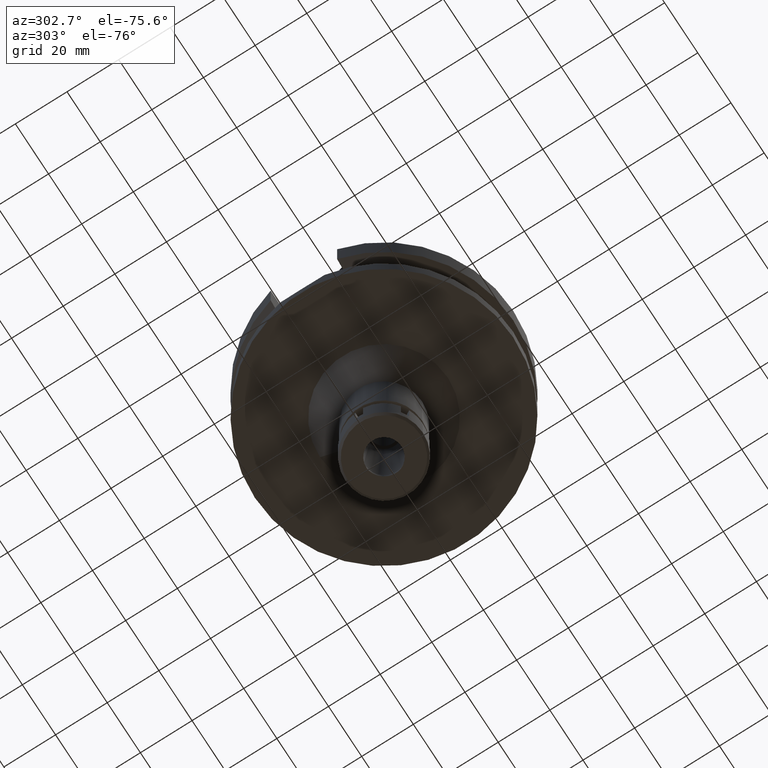
[diagram: clean part render]
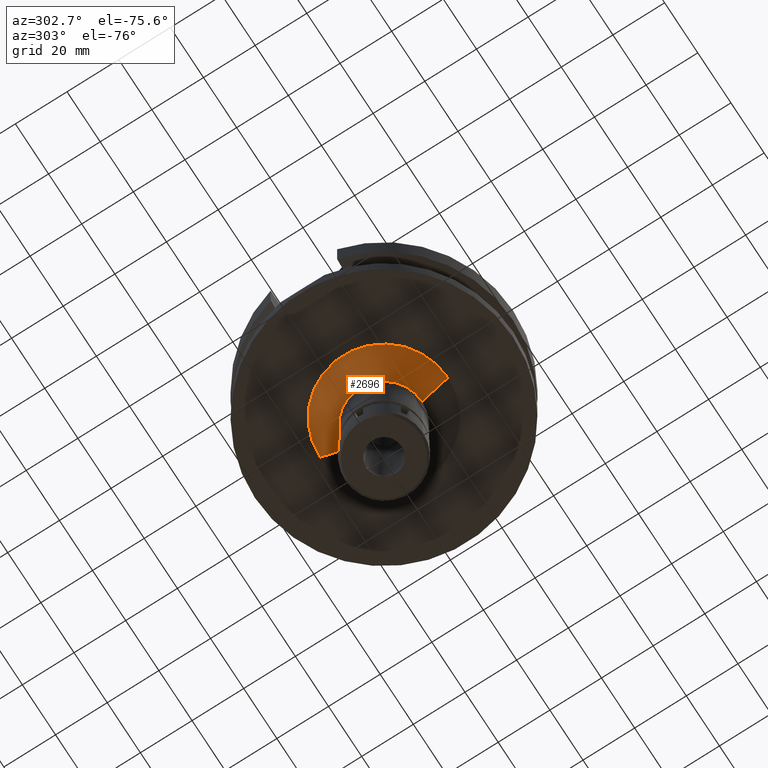
[diagram: same view with one face highlighted and labeled with its STEP entity id]
A machine part, auxiliary view. The second image highlights one B-rep face of the part: STEP entity #2696.
In plain terms, the highlighted conical surface has half-angle 45 deg.
Its self-contained STEP definition (entity closure, byte-faithful):
#161 = DIRECTION ( 'NONE',  ( 0.0000000000000000000, 0.0000000000000000000, -1.000000000000000000 ) ) ;
#195 = ORIENTED_EDGE ( 'NONE', *, *, #1630, .F. ) ;
#227 = EDGE_CURVE ( 'NONE', #1597, #2501, #1205, .T. ) ;
#403 = AXIS2_PLACEMENT_3D ( 'NONE', #1789, #910, #3152 ) ;
#438 = CARTESIAN_POINT ( 'NONE',  ( 0.0000000000000000000, 0.0000000000000000000, -38.00000000000000000 ) ) ;
#568 = AXIS2_PLACEMENT_3D ( 'NONE', #438, #161, #2421 ) ;
#629 = CIRCLE ( 'NONE', #568, 24.75000000000000000 ) ;
#697 = VERTEX_POINT ( 'NONE', #1315 ) ;
#801 = AXIS2_PLACEMENT_3D ( 'NONE', #1781, #2375, #953 ) ;
#836 = EDGE_CURVE ( 'NONE', #697, #2514, #887, .T. ) ;
#851 = ORIENTED_EDGE ( 'NONE', *, *, #3183, .T. ) ;
#887 = LINE ( 'NONE', #2008, #1262 ) ;
#910 = DIRECTION ( 'NONE',  ( 0.0000000000000000000, 0.0000000000000000000, 1.000000000000000000 ) ) ;
#953 = DIRECTION ( 'NONE',  ( 0.0000000000000000000, -1.000000000000000000, 0.0000000000000000000 ) ) ;
#1205 = LINE ( 'NONE', #1734, #3510 ) ;
#1262 = VECTOR ( 'NONE', #1725, 1000.000000000000114 ) ;
#1315 = CARTESIAN_POINT ( 'NONE',  ( 0.0000000000000000000, 24.75000000000000000, -38.00000000000000000 ) ) ;
#1597 = VERTEX_POINT ( 'NONE', #2040 ) ;
#1630 = EDGE_CURVE ( 'NONE', #2501, #2514, #3420, .T. ) ;
#1725 = DIRECTION ( 'NONE',  ( 0.0000000000000000000, -0.7071067811865474617, -0.7071067811865474617 ) ) ;
#1734 = CARTESIAN_POINT ( 'NONE',  ( 0.0000000000000000000, -24.75000000000000000, -38.00000000000000000 ) ) ;
#1781 = CARTESIAN_POINT ( 'NONE',  ( 0.0000000000000000000, 0.0000000000000000000, -48.00000000000000000 ) ) ;
#1789 = CARTESIAN_POINT ( 'NONE',  ( 0.0000000000000000000, 0.0000000000000000000, -43.00000000000000000 ) ) ;
#1943 = ORIENTED_EDGE ( 'NONE', *, *, #836, .T. ) ;
#2008 = CARTESIAN_POINT ( 'NONE',  ( 0.0000000000000000000, 24.75000000000000000, -38.00000000000000000 ) ) ;
#2040 = CARTESIAN_POINT ( 'NONE',  ( 0.0000000000000000000, -24.75000000000000000, -38.00000000000000000 ) ) ;
#2346 = CONICAL_SURFACE ( 'NONE', #403, 19.75000000000000000, 0.7853981633972997312 ) ;
#2364 = ORIENTED_EDGE ( 'NONE', *, *, #227, .F. ) ;
#2375 = DIRECTION ( 'NONE',  ( 0.0000000000000000000, 0.0000000000000000000, -1.000000000000000000 ) ) ;
#2421 = DIRECTION ( 'NONE',  ( 0.0000000000000000000, -1.000000000000000000, 0.0000000000000000000 ) ) ;
#2501 = VERTEX_POINT ( 'NONE', #3045 ) ;
#2514 = VERTEX_POINT ( 'NONE', #3614 ) ;
#2679 = EDGE_LOOP ( 'NONE', ( #195, #2364, #851, #1943 ) ) ;
#2696 = ADVANCED_FACE ( 'NONE', ( #3523 ), #2346, .T. ) ;
#2909 = DIRECTION ( 'NONE',  ( 0.0000000000000000000, 0.7071067811865474617, -0.7071067811865474617 ) ) ;
#3045 = CARTESIAN_POINT ( 'NONE',  ( 0.0000000000000000000, -14.75000000000000000, -48.00000000000000000 ) ) ;
#3152 = DIRECTION ( 'NONE',  ( 0.0000000000000000000, 1.000000000000000000, 0.0000000000000000000 ) ) ;
#3183 = EDGE_CURVE ( 'NONE', #1597, #697, #629, .T. ) ;
#3420 = CIRCLE ( 'NONE', #801, 14.75000000000000000 ) ;
#3510 = VECTOR ( 'NONE', #2909, 1000.000000000000114 ) ;
#3523 = FACE_OUTER_BOUND ( 'NONE', #2679, .T. ) ;
#3614 = CARTESIAN_POINT ( 'NONE',  ( 0.0000000000000000000, 14.75000000000000000, -48.00000000000000000 ) ) ;